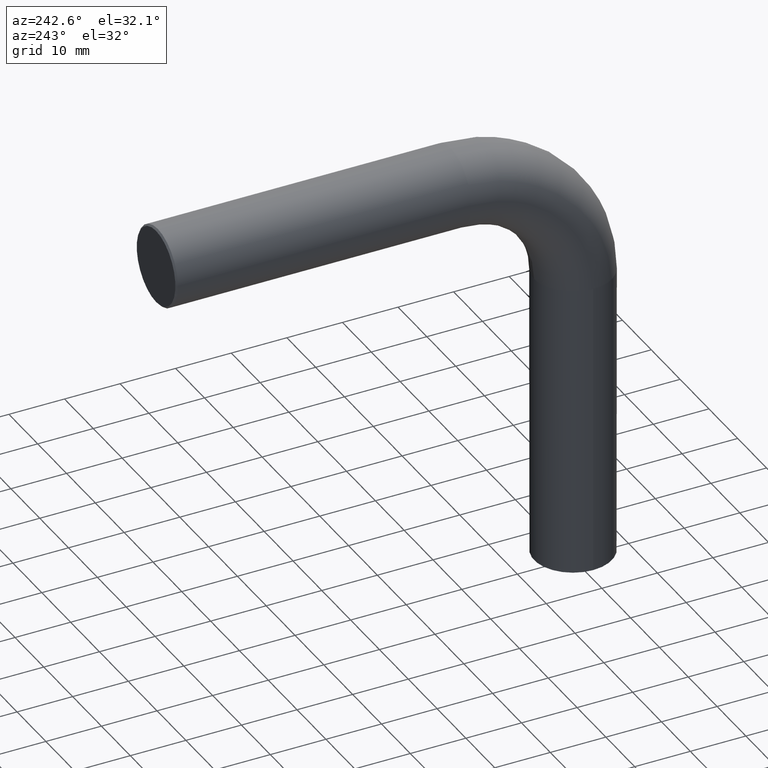
[diagram: clean part render]
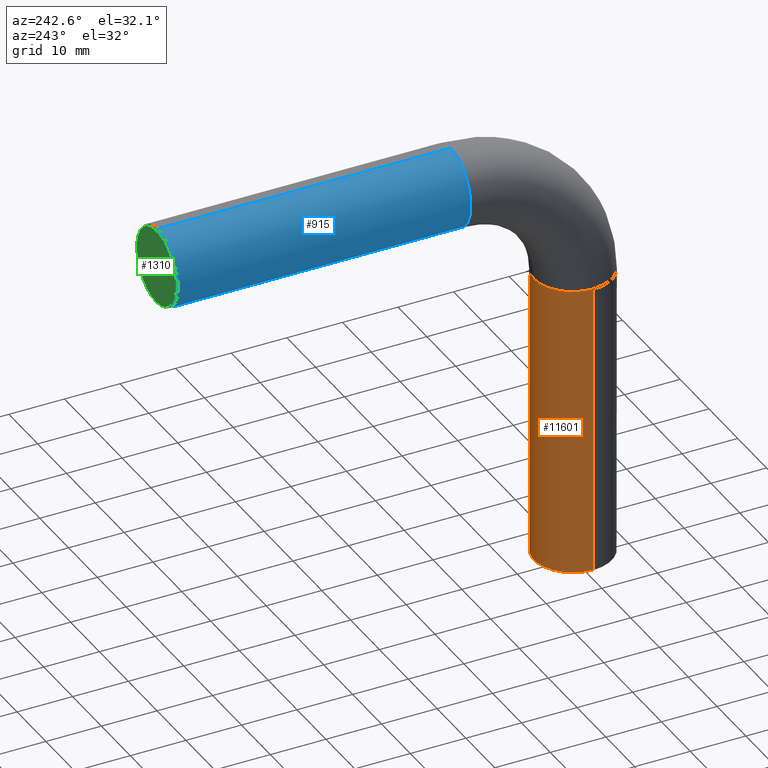
[diagram: same view with three faces highlighted in distinct colors, each labeled with its STEP entity id]
A machine part, auxiliary view with three faces highlighted in distinct colors.
Their STEP definitions:

[orange] entity #11601 — the highlighted cylindrical surface (partial cylindrical patch) has radius 7 mm, axis along (-0, -0, -1).
#257 = LINE ( 'NONE', #13002, #8711 ) ;
#275 = CYLINDRICAL_SURFACE ( 'NONE', #320, 7.000000000000000888 ) ;
#320 = AXIS2_PLACEMENT_3D ( 'NONE', #9738, #6466, #4428 ) ;
#1254 = VERTEX_POINT ( 'NONE', #4329 ) ;
#1650 = CIRCLE ( 'NONE', #11810, 7.000000000000000888 ) ;
#2167 = EDGE_CURVE ( 'NONE', #3691, #12741, #8744, .T. ) ;
#2357 = CARTESIAN_POINT ( 'NONE',  ( -7.000000000000000888, 0.000000000000000000, 52.99999999999983658 ) ) ;
#2445 = CARTESIAN_POINT ( 'NONE',  ( -7.000000000000000888, 0.000000000000000000, 0.000000000000000000 ) ) ;
#2536 = DIRECTION ( 'NONE',  ( -0.000000000000000000, -0.000000000000000000, -1.000000000000000000 ) ) ;
#2927 = EDGE_LOOP ( 'NONE', ( #7978, #11980, #9271, #12096, #10216 ) ) ;
#3413 = DIRECTION ( 'NONE',  ( 0.000000000000000000, 0.000000000000000000, 1.000000000000000000 ) ) ;
#3438 = DIRECTION ( 'NONE',  ( 0.000000000000000000, 0.000000000000000000, 1.000000000000000000 ) ) ;
#3560 = DIRECTION ( 'NONE',  ( -0.000000000000000000, -0.000000000000000000, -1.000000000000000000 ) ) ;
#3691 = VERTEX_POINT ( 'NONE', #12158 ) ;
#3975 = EDGE_CURVE ( 'NONE', #10599, #3691, #257, .T. ) ;
#4329 = CARTESIAN_POINT ( 'NONE',  ( 8.572527594031474176E-16, 7.000000000000000888, 52.99999999999983658 ) ) ;
#4428 = DIRECTION ( 'NONE',  ( -1.000000000000000000, 0.000000000000000000, 0.000000000000000000 ) ) ;
#4767 = EDGE_CURVE ( 'NONE', #1254, #8505, #7214, .T. ) ;
#5633 = DIRECTION ( 'NONE',  ( 1.000000000000000000, 0.000000000000000000, 0.000000000000000000 ) ) ;
#5783 = CARTESIAN_POINT ( 'NONE',  ( 7.000000000000000888, 8.572527594031474176E-16, 52.99999999999983658 ) ) ;
#6188 = AXIS2_PLACEMENT_3D ( 'NONE', #10053, #8724, #5633 ) ;
#6466 = DIRECTION ( 'NONE',  ( -0.000000000000000000, -0.000000000000000000, -1.000000000000000000 ) ) ;
#6921 = FACE_OUTER_BOUND ( 'NONE', #2927, .T. ) ;
#7214 = CIRCLE ( 'NONE', #6188, 7.000000000000000888 ) ;
#7308 = EDGE_CURVE ( 'NONE', #8505, #12741, #9650, .T. ) ;
#7473 = CARTESIAN_POINT ( 'NONE',  ( 0.000000000000000000, 0.000000000000000000, 0.000000000000000000 ) ) ;
#7492 = DIRECTION ( 'NONE',  ( 1.000000000000000000, 0.000000000000000000, 0.000000000000000000 ) ) ;
#7879 = CARTESIAN_POINT ( 'NONE',  ( -7.000000000000000888, 0.000000000000000000, 52.99999999999983658 ) ) ;
#7978 = ORIENTED_EDGE ( 'NONE', *, *, #8538, .F. ) ;
#8505 = VERTEX_POINT ( 'NONE', #2357 ) ;
#8509 = DIRECTION ( 'NONE',  ( 1.000000000000000000, 0.000000000000000000, 0.000000000000000000 ) ) ;
#8538 = EDGE_CURVE ( 'NONE', #10599, #1254, #1650, .T. ) ;
#8711 = VECTOR ( 'NONE', #3560, 1000.000000000000000 ) ;
#8724 = DIRECTION ( 'NONE',  ( 0.000000000000000000, 0.000000000000000000, 1.000000000000000000 ) ) ;
#8744 = CIRCLE ( 'NONE', #11143, 7.000000000000000888 ) ;
#8982 = VECTOR ( 'NONE', #2536, 1000.000000000000000 ) ;
#9271 = ORIENTED_EDGE ( 'NONE', *, *, #2167, .T. ) ;
#9522 = CARTESIAN_POINT ( 'NONE',  ( 0.000000000000000000, 0.000000000000000000, 52.99999999999983658 ) ) ;
#9650 = LINE ( 'NONE', #7879, #8982 ) ;
#9738 = CARTESIAN_POINT ( 'NONE',  ( 0.000000000000000000, 0.000000000000000000, 52.99999999999983658 ) ) ;
#10053 = CARTESIAN_POINT ( 'NONE',  ( 0.000000000000000000, 0.000000000000000000, 52.99999999999983658 ) ) ;
#10216 = ORIENTED_EDGE ( 'NONE', *, *, #4767, .F. ) ;
#10599 = VERTEX_POINT ( 'NONE', #5783 ) ;
#11143 = AXIS2_PLACEMENT_3D ( 'NONE', #7473, #3438, #8509 ) ;
#11601 = ADVANCED_FACE ( 'NONE', ( #6921 ), #275, .T. ) ;
#11810 = AXIS2_PLACEMENT_3D ( 'NONE', #9522, #3413, #7492 ) ;
#11980 = ORIENTED_EDGE ( 'NONE', *, *, #3975, .T. ) ;
#12096 = ORIENTED_EDGE ( 'NONE', *, *, #7308, .F. ) ;
#12158 = CARTESIAN_POINT ( 'NONE',  ( 7.000000000000000888, 8.572527594031474176E-16, 0.000000000000000000 ) ) ;
#12741 = VERTEX_POINT ( 'NONE', #2445 ) ;
#13002 = CARTESIAN_POINT ( 'NONE',  ( 7.000000000000000888, 8.572527594031474176E-16, 52.99999999999983658 ) ) ;

[blue] entity #915 — the highlighted cylindrical surface (partial cylindrical patch) has radius 7 mm, axis along (0, 1, 0).
#364 = DIRECTION ( 'NONE',  ( 1.000000000000000000, 0.000000000000000000, 0.000000000000000000 ) ) ;
#915 = ADVANCED_FACE ( 'NONE', ( #2594 ), #3407, .T. ) ;
#1096 = CIRCLE ( 'NONE', #2717, 7.000000000000006217 ) ;
#1271 = EDGE_CURVE ( 'NONE', #12789, #13058, #1096, .T. ) ;
#1654 = CARTESIAN_POINT ( 'NONE',  ( 0.000000000000000000, 22.00000000000026290, 82.00000000000000000 ) ) ;
#1813 = CARTESIAN_POINT ( 'NONE',  ( 8.572527594031474176E-16, 22.00000000000016342, 67.99999999999998579 ) ) ;
#2120 = CARTESIAN_POINT ( 'NONE',  ( 8.572527594031467273E-16, 22.00000000000006040, 67.99999999999998579 ) ) ;
#2367 = DIRECTION ( 'NONE',  ( 0.000000000000000000, 1.000000000000000000, -1.459371158509469876E-14 ) ) ;
#2594 = FACE_OUTER_BOUND ( 'NONE', #7985, .T. ) ;
#2717 = AXIS2_PLACEMENT_3D ( 'NONE', #11581, #5362, #6454 ) ;
#2917 = VERTEX_POINT ( 'NONE', #1654 ) ;
#3288 = LINE ( 'NONE', #6329, #12559 ) ;
#3326 = LINE ( 'NONE', #1813, #4303 ) ;
#3407 = CYLINDRICAL_SURFACE ( 'NONE', #13158, 7.000000000000006217 ) ;
#3469 = CIRCLE ( 'NONE', #6396, 7.000000000000000888 ) ;
#3565 = DIRECTION ( 'NONE',  ( 0.000000000000000000, 0.000000000000000000, 1.000000000000000000 ) ) ;
#4037 = ORIENTED_EDGE ( 'NONE', *, *, #5200, .F. ) ;
#4303 = VECTOR ( 'NONE', #5902, 1000.000000000000000 ) ;
#5200 = EDGE_CURVE ( 'NONE', #6378, #13058, #3326, .T. ) ;
#5362 = DIRECTION ( 'NONE',  ( 0.000000000000000000, -1.000000000000000000, 0.000000000000000000 ) ) ;
#5409 = ORIENTED_EDGE ( 'NONE', *, *, #9914, .T. ) ;
#5886 = ORIENTED_EDGE ( 'NONE', *, *, #9229, .T. ) ;
#5902 = DIRECTION ( 'NONE',  ( 0.000000000000000000, 1.000000000000000000, 0.000000000000000000 ) ) ;
#5999 = ORIENTED_EDGE ( 'NONE', *, *, #1271, .T. ) ;
#6329 = CARTESIAN_POINT ( 'NONE',  ( 0.000000000000000000, 22.00000000000016342, 82.00000000000000000 ) ) ;
#6378 = VERTEX_POINT ( 'NONE', #2120 ) ;
#6396 = AXIS2_PLACEMENT_3D ( 'NONE', #8587, #2367, #364 ) ;
#6454 = DIRECTION ( 'NONE',  ( 0.000000000000000000, 0.000000000000000000, 1.000000000000000000 ) ) ;
#7985 = EDGE_LOOP ( 'NONE', ( #4037, #5409, #5886, #5999 ) ) ;
#8587 = CARTESIAN_POINT ( 'NONE',  ( 0.000000000000000000, 22.00000000000016342, 75.00000000000000000 ) ) ;
#8731 = CARTESIAN_POINT ( 'NONE',  ( 0.000000000000000000, 22.00000000000016342, 75.00000000000000000 ) ) ;
#8913 = CARTESIAN_POINT ( 'NONE',  ( 8.572527594031467273E-16, 74.70000000000001705, 67.99999999999998579 ) ) ;
#9229 = EDGE_CURVE ( 'NONE', #2917, #12789, #3288, .T. ) ;
#9801 = DIRECTION ( 'NONE',  ( 0.000000000000000000, 1.000000000000000000, 0.000000000000000000 ) ) ;
#9914 = EDGE_CURVE ( 'NONE', #6378, #2917, #3469, .T. ) ;
#10550 = CARTESIAN_POINT ( 'NONE',  ( 0.000000000000000000, 74.70000000000001705, 82.00000000000000000 ) ) ;
#11581 = CARTESIAN_POINT ( 'NONE',  ( 0.000000000000000000, 74.70000000000001705, 75.00000000000000000 ) ) ;
#11703 = DIRECTION ( 'NONE',  ( 0.000000000000000000, 1.000000000000000000, 0.000000000000000000 ) ) ;
#12559 = VECTOR ( 'NONE', #11703, 1000.000000000000000 ) ;
#12789 = VERTEX_POINT ( 'NONE', #10550 ) ;
#13058 = VERTEX_POINT ( 'NONE', #8913 ) ;
#13158 = AXIS2_PLACEMENT_3D ( 'NONE', #8731, #9801, #3565 ) ;

[green] entity #1310 — the highlighted planar face has unit normal (0, 1, -0).
#373 = DIRECTION ( 'NONE',  ( 0.000000000000000000, 1.000000000000000000, -1.459371158509469876E-14 ) ) ;
#911 = EDGE_CURVE ( 'NONE', #5316, #6982, #5509, .T. ) ;
#1079 = AXIS2_PLACEMENT_3D ( 'NONE', #1667, #4776, #1750 ) ;
#1310 = ADVANCED_FACE ( 'NONE', ( #1586 ), #6498, .T. ) ;
#1586 = FACE_OUTER_BOUND ( 'NONE', #6594, .T. ) ;
#1667 = CARTESIAN_POINT ( 'NONE',  ( 0.000000000000000000, 75.00000000000000000, 75.00000000000000000 ) ) ;
#1750 = DIRECTION ( 'NONE',  ( 0.000000000000000000, 1.449918129174642329E-14, 1.000000000000000000 ) ) ;
#2461 = AXIS2_PLACEMENT_3D ( 'NONE', #3475, #373, #10628 ) ;
#2745 = CARTESIAN_POINT ( 'NONE',  ( 0.000000000000000000, 74.99999999999990052, 68.29999999999998295 ) ) ;
#2799 = ORIENTED_EDGE ( 'NONE', *, *, #911, .T. ) ;
#3475 = CARTESIAN_POINT ( 'NONE',  ( 0.000000000000000000, 75.00000000000000000, 75.00000000000000000 ) ) ;
#4596 = DIRECTION ( 'NONE',  ( 0.000000000000000000, 1.449918129174642329E-14, 1.000000000000000000 ) ) ;
#4776 = DIRECTION ( 'NONE',  ( 0.000000000000000000, 1.000000000000000000, -1.459371158509469876E-14 ) ) ;
#5316 = VERTEX_POINT ( 'NONE', #2745 ) ;
#5509 = CIRCLE ( 'NONE', #10078, 6.700000000000011724 ) ;
#5587 = CIRCLE ( 'NONE', #1079, 6.700000000000011724 ) ;
#6498 = PLANE ( 'NONE',  #2461 ) ;
#6594 = EDGE_LOOP ( 'NONE', ( #2799, #12203 ) ) ;
#6982 = VERTEX_POINT ( 'NONE', #8138 ) ;
#8138 = CARTESIAN_POINT ( 'NONE',  ( 8.388830574159373820E-16, 75.00000000000009948, 81.70000000000000284 ) ) ;
#8227 = EDGE_CURVE ( 'NONE', #6982, #5316, #5587, .T. ) ;
#9755 = DIRECTION ( 'NONE',  ( 0.000000000000000000, 1.000000000000000000, -1.459371158509469876E-14 ) ) ;
#10078 = AXIS2_PLACEMENT_3D ( 'NONE', #12790, #9755, #4596 ) ;
#10628 = DIRECTION ( 'NONE',  ( 1.000000000000000000, 0.000000000000000000, 0.000000000000000000 ) ) ;
#12203 = ORIENTED_EDGE ( 'NONE', *, *, #8227, .T. ) ;
#12790 = CARTESIAN_POINT ( 'NONE',  ( 0.000000000000000000, 75.00000000000000000, 75.00000000000000000 ) ) ;